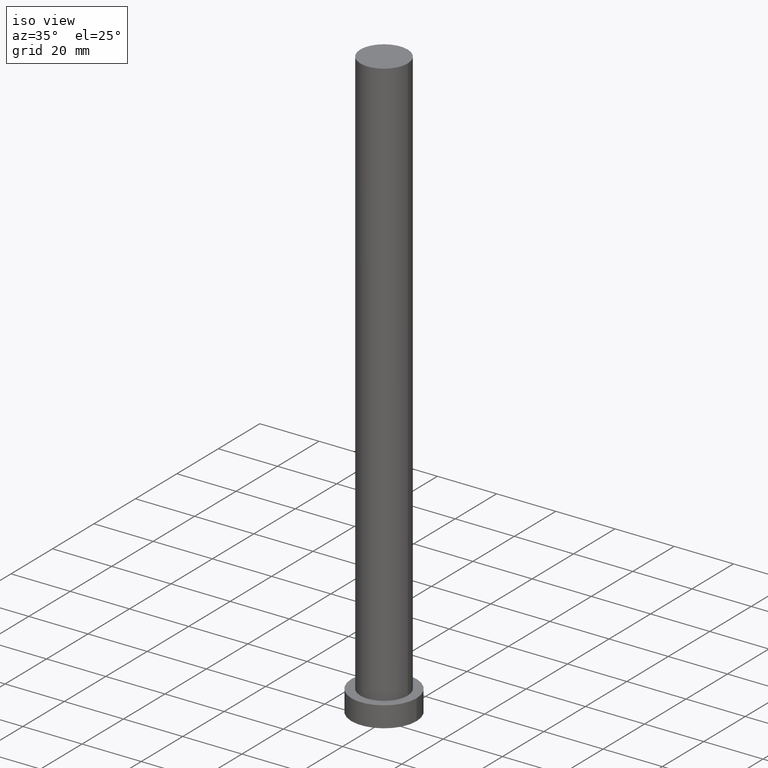
[diagram: clean part render]
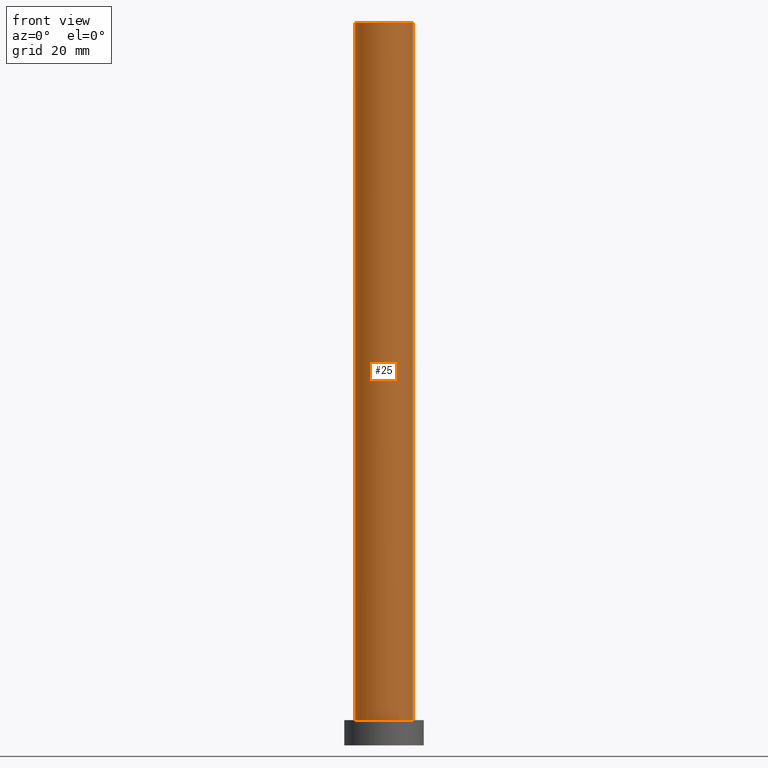
[diagram: tour spotlight — one face highlighted and labeled with its STEP entity id]
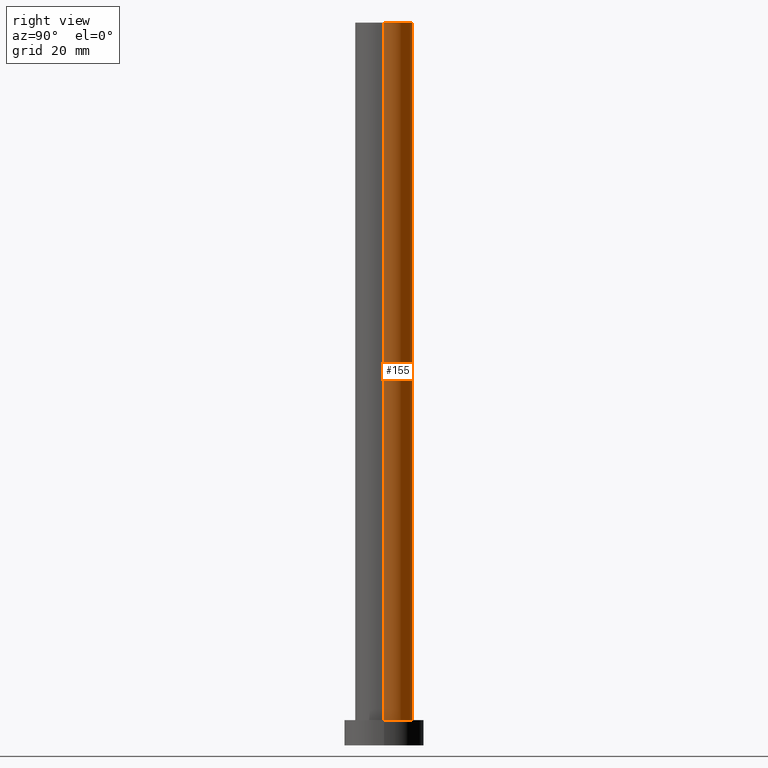
[diagram: tour spotlight — one face highlighted and labeled with its STEP entity id]
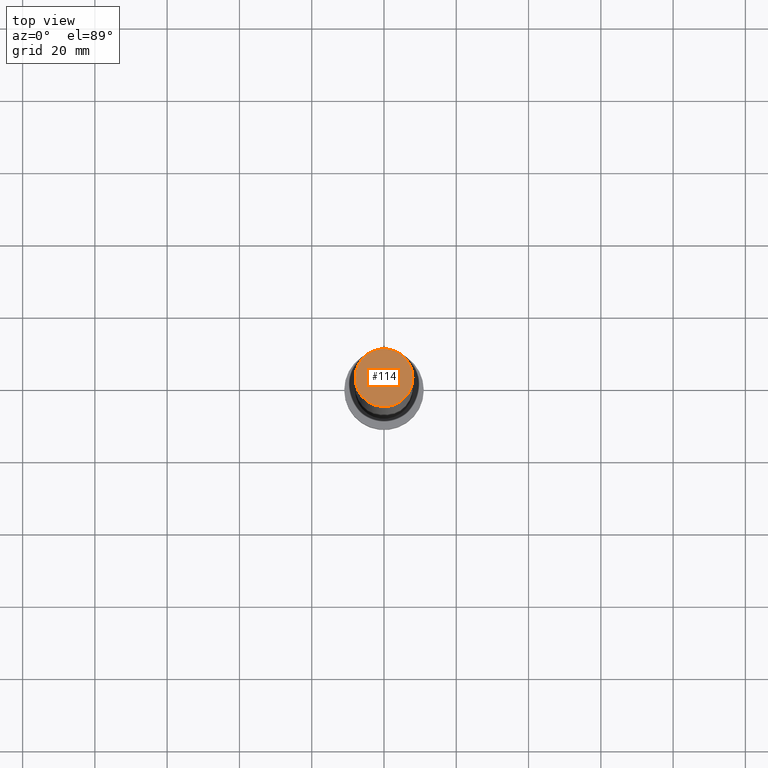
[diagram: tour spotlight — one face highlighted and labeled with its STEP entity id]
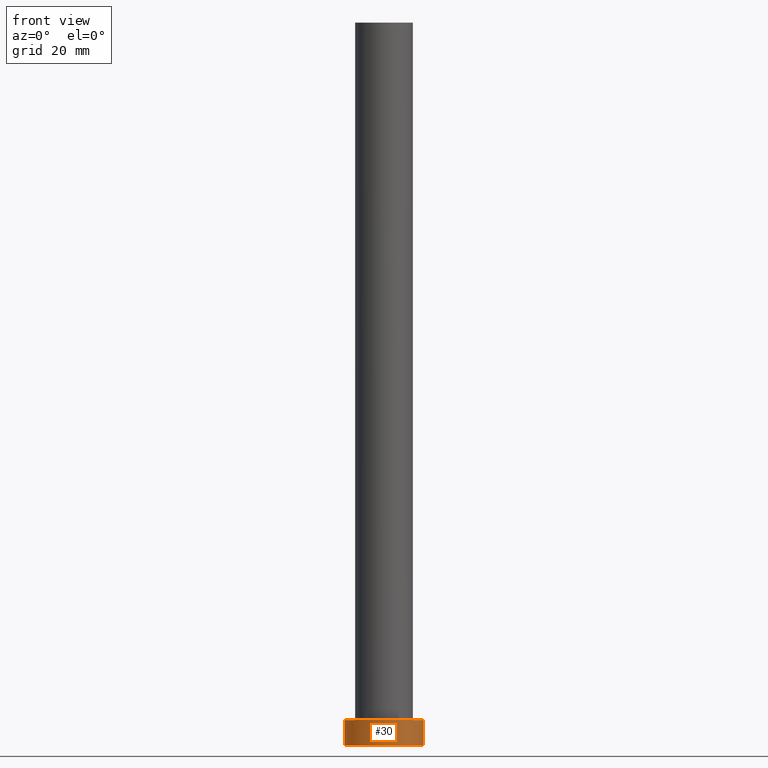
[diagram: tour spotlight — one face highlighted and labeled with its STEP entity id]
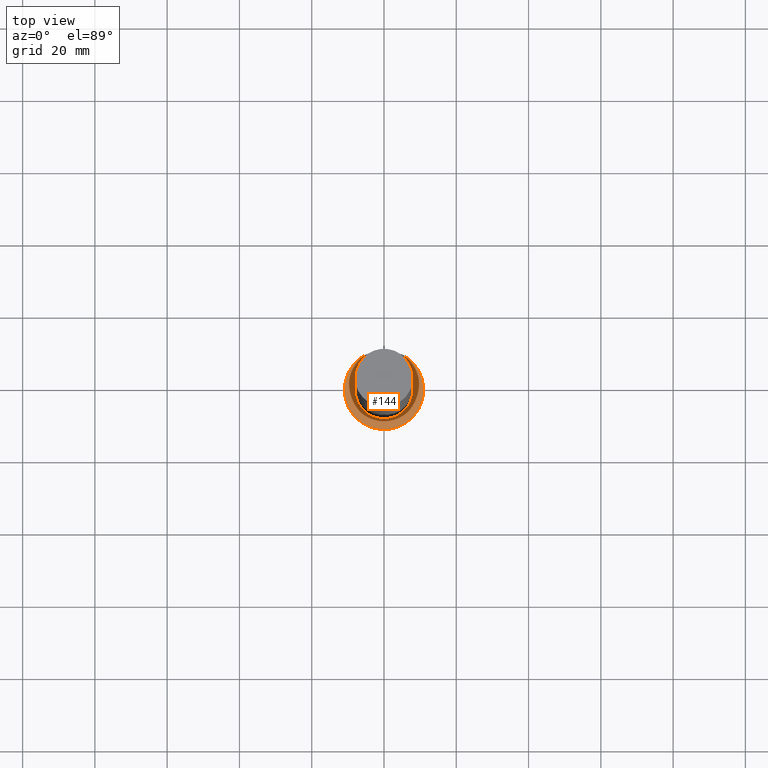
[diagram: tour spotlight — one face highlighted and labeled with its STEP entity id]
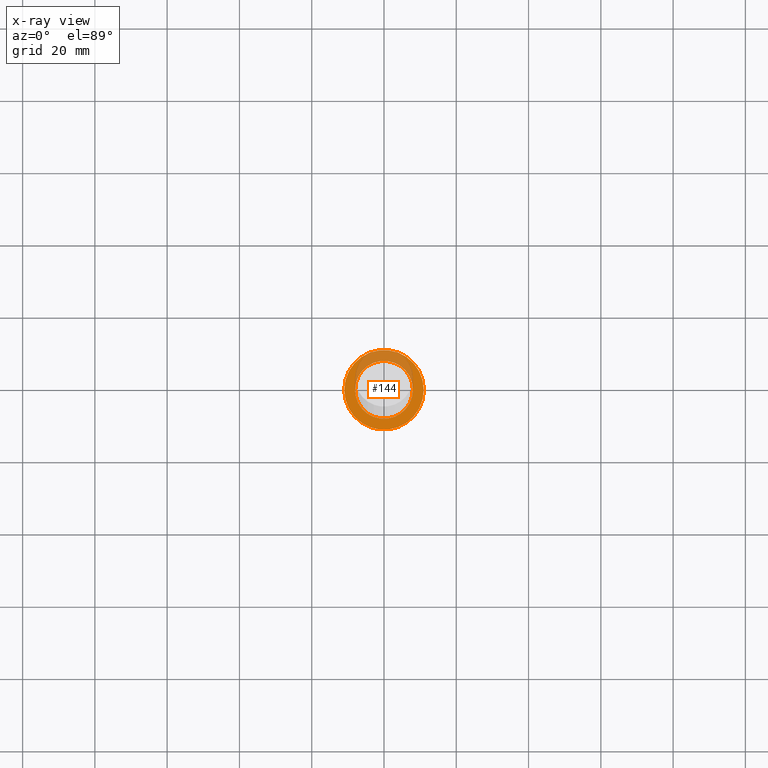
[diagram: x-ray of the same camera — body ghosted, this tour face saturated]
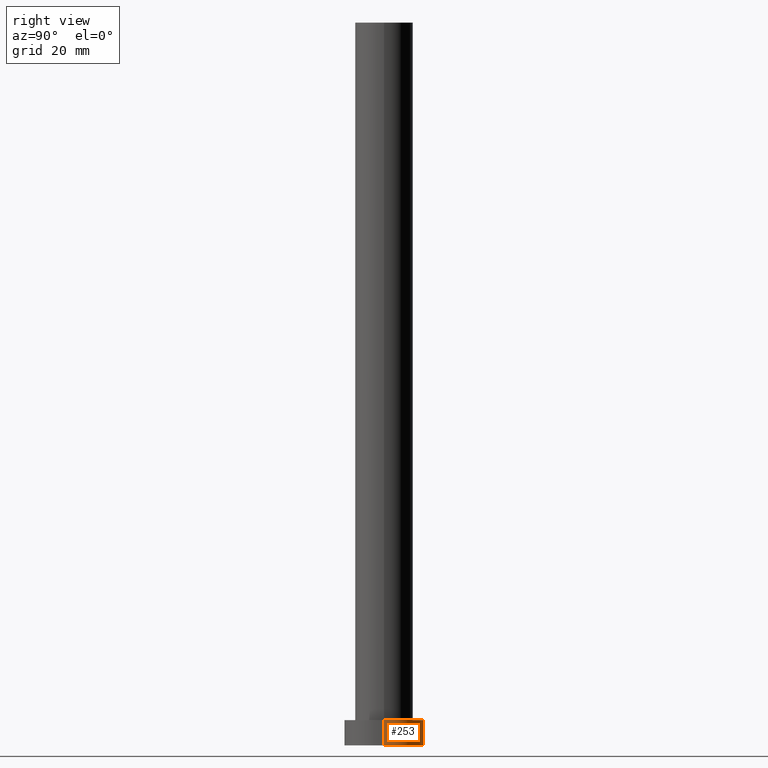
[diagram: tour spotlight — one face highlighted and labeled with its STEP entity id]
A machine part: a face-by-face anatomy tour. The part has 7 B-rep faces; the first image is the clean iso view, then the 6 largest visible faces are spotlighted one at a time (largest first), each with its STEP entity span.

Face 1 — front view, entity #25. In plain terms, the highlighted cylindrical surface (edge-blend (fillet) strip) has radius 8 mm, axis along (-0, -0, -1).
Definition (entity closure, byte-faithful):
#10 = CARTESIAN_POINT ( 'NONE',  ( 0.000000000000000000, 0.000000000000000000, 7.000000000000000000 ) ) ;
#13 = EDGE_LOOP ( 'NONE', ( #125, #53, #192, #211 ) ) ;
#18 = VERTEX_POINT ( 'NONE', #45 ) ;
#25 = ADVANCED_FACE ( 'NONE', ( #79 ), #238, .T. ) ;
#27 = AXIS2_PLACEMENT_3D ( 'NONE', #198, #67, #244 ) ;
#31 = LINE ( 'NONE', #102, #231 ) ;
#32 = DIRECTION ( 'NONE',  ( -0.000000000000000000, -0.000000000000000000, -1.000000000000000000 ) ) ;
#45 = CARTESIAN_POINT ( 'NONE',  ( 8.000000000000000000, 9.797174393178825657E-16, 200.0000000000000000 ) ) ;
#50 = DIRECTION ( 'NONE',  ( 0.000000000000000000, 0.000000000000000000, 1.000000000000000000 ) ) ;
#53 = ORIENTED_EDGE ( 'NONE', *, *, #98, .F. ) ;
#62 = CARTESIAN_POINT ( 'NONE',  ( 0.000000000000000000, 0.000000000000000000, 200.0000000000000000 ) ) ;
#67 = DIRECTION ( 'NONE',  ( -0.000000000000000000, -0.000000000000000000, -1.000000000000000000 ) ) ;
#78 = EDGE_CURVE ( 'NONE', #18, #96, #31, .T. ) ;
#79 = FACE_OUTER_BOUND ( 'NONE', #13, .T. ) ;
#85 = DIRECTION ( 'NONE',  ( -0.000000000000000000, -0.000000000000000000, -1.000000000000000000 ) ) ;
#92 = AXIS2_PLACEMENT_3D ( 'NONE', #10, #182, #245 ) ;
#96 = VERTEX_POINT ( 'NONE', #186 ) ;
#98 = EDGE_CURVE ( 'NONE', #112, #18, #201, .T. ) ;
#99 = LINE ( 'NONE', #223, #179 ) ;
#102 = CARTESIAN_POINT ( 'NONE',  ( 8.000000000000000000, 9.797174393178825657E-16, 200.0000000000000000 ) ) ;
#112 = VERTEX_POINT ( 'NONE', #248 ) ;
#125 = ORIENTED_EDGE ( 'NONE', *, *, #78, .F. ) ;
#148 = EDGE_CURVE ( 'NONE', #112, #234, #99, .T. ) ;
#156 = EDGE_CURVE ( 'NONE', #234, #96, #199, .T. ) ;
#167 = AXIS2_PLACEMENT_3D ( 'NONE', #62, #50, #185 ) ;
#179 = VECTOR ( 'NONE', #85, 1000.000000000000000 ) ;
#182 = DIRECTION ( 'NONE',  ( 0.000000000000000000, 0.000000000000000000, 1.000000000000000000 ) ) ;
#185 = DIRECTION ( 'NONE',  ( 1.000000000000000000, 0.000000000000000000, 0.000000000000000000 ) ) ;
#186 = CARTESIAN_POINT ( 'NONE',  ( 8.000000000000000000, 9.797174393178825657E-16, 7.000000000000000000 ) ) ;
#192 = ORIENTED_EDGE ( 'NONE', *, *, #148, .T. ) ;
#198 = CARTESIAN_POINT ( 'NONE',  ( 0.000000000000000000, 0.000000000000000000, 200.0000000000000000 ) ) ;
#199 = CIRCLE ( 'NONE', #92, 8.000000000000000000 ) ;
#201 = CIRCLE ( 'NONE', #167, 8.000000000000000000 ) ;
#211 = ORIENTED_EDGE ( 'NONE', *, *, #156, .T. ) ;
#223 = CARTESIAN_POINT ( 'NONE',  ( -8.000000000000000000, 0.000000000000000000, 200.0000000000000000 ) ) ;
#229 = CARTESIAN_POINT ( 'NONE',  ( -8.000000000000000000, 0.000000000000000000, 7.000000000000000000 ) ) ;
#231 = VECTOR ( 'NONE', #32, 1000.000000000000000 ) ;
#234 = VERTEX_POINT ( 'NONE', #229 ) ;
#238 = CYLINDRICAL_SURFACE ( 'NONE', #27, 8.000000000000000000 ) ;
#244 = DIRECTION ( 'NONE',  ( -1.000000000000000000, 0.000000000000000000, 0.000000000000000000 ) ) ;
#245 = DIRECTION ( 'NONE',  ( 1.000000000000000000, 0.000000000000000000, 0.000000000000000000 ) ) ;
#248 = CARTESIAN_POINT ( 'NONE',  ( -8.000000000000000000, 0.000000000000000000, 200.0000000000000000 ) ) ;

Face 2 — right view, entity #155. In plain terms, the highlighted cylindrical surface (edge-blend (fillet) strip) has radius 8 mm, axis along (-0, -0, -1).
Definition (entity closure, byte-faithful):
#7 = CARTESIAN_POINT ( 'NONE',  ( 0.000000000000000000, 0.000000000000000000, 200.0000000000000000 ) ) ;
#18 = VERTEX_POINT ( 'NONE', #45 ) ;
#31 = LINE ( 'NONE', #102, #231 ) ;
#32 = DIRECTION ( 'NONE',  ( -0.000000000000000000, -0.000000000000000000, -1.000000000000000000 ) ) ;
#45 = CARTESIAN_POINT ( 'NONE',  ( 8.000000000000000000, 9.797174393178825657E-16, 200.0000000000000000 ) ) ;
#55 = ORIENTED_EDGE ( 'NONE', *, *, #78, .T. ) ;
#61 = AXIS2_PLACEMENT_3D ( 'NONE', #7, #158, #66 ) ;
#63 = DIRECTION ( 'NONE',  ( -0.000000000000000000, -0.000000000000000000, -1.000000000000000000 ) ) ;
#64 = CIRCLE ( 'NONE', #61, 8.000000000000000000 ) ;
#66 = DIRECTION ( 'NONE',  ( 1.000000000000000000, 0.000000000000000000, 0.000000000000000000 ) ) ;
#78 = EDGE_CURVE ( 'NONE', #18, #96, #31, .T. ) ;
#84 = CYLINDRICAL_SURFACE ( 'NONE', #194, 8.000000000000000000 ) ;
#85 = DIRECTION ( 'NONE',  ( -0.000000000000000000, -0.000000000000000000, -1.000000000000000000 ) ) ;
#89 = ORIENTED_EDGE ( 'NONE', *, *, #148, .F. ) ;
#96 = VERTEX_POINT ( 'NONE', #186 ) ;
#99 = LINE ( 'NONE', #223, #179 ) ;
#102 = CARTESIAN_POINT ( 'NONE',  ( 8.000000000000000000, 9.797174393178825657E-16, 200.0000000000000000 ) ) ;
#104 = CIRCLE ( 'NONE', #241, 8.000000000000000000 ) ;
#112 = VERTEX_POINT ( 'NONE', #248 ) ;
#119 = DIRECTION ( 'NONE',  ( 0.000000000000000000, 0.000000000000000000, 1.000000000000000000 ) ) ;
#127 = EDGE_LOOP ( 'NONE', ( #170, #55, #228, #89 ) ) ;
#139 = CARTESIAN_POINT ( 'NONE',  ( 0.000000000000000000, 0.000000000000000000, 200.0000000000000000 ) ) ;
#148 = EDGE_CURVE ( 'NONE', #112, #234, #99, .T. ) ;
#155 = ADVANCED_FACE ( 'NONE', ( #187 ), #84, .T. ) ;
#158 = DIRECTION ( 'NONE',  ( 0.000000000000000000, 0.000000000000000000, 1.000000000000000000 ) ) ;
#159 = EDGE_CURVE ( 'NONE', #18, #112, #64, .T. ) ;
#165 = EDGE_CURVE ( 'NONE', #96, #234, #104, .T. ) ;
#170 = ORIENTED_EDGE ( 'NONE', *, *, #159, .F. ) ;
#179 = VECTOR ( 'NONE', #85, 1000.000000000000000 ) ;
#186 = CARTESIAN_POINT ( 'NONE',  ( 8.000000000000000000, 9.797174393178825657E-16, 7.000000000000000000 ) ) ;
#187 = FACE_OUTER_BOUND ( 'NONE', #127, .T. ) ;
#194 = AXIS2_PLACEMENT_3D ( 'NONE', #139, #63, #204 ) ;
#200 = DIRECTION ( 'NONE',  ( 1.000000000000000000, 0.000000000000000000, 0.000000000000000000 ) ) ;
#204 = DIRECTION ( 'NONE',  ( -1.000000000000000000, 0.000000000000000000, 0.000000000000000000 ) ) ;
#221 = CARTESIAN_POINT ( 'NONE',  ( 0.000000000000000000, 0.000000000000000000, 7.000000000000000000 ) ) ;
#223 = CARTESIAN_POINT ( 'NONE',  ( -8.000000000000000000, 0.000000000000000000, 200.0000000000000000 ) ) ;
#228 = ORIENTED_EDGE ( 'NONE', *, *, #165, .T. ) ;
#229 = CARTESIAN_POINT ( 'NONE',  ( -8.000000000000000000, 0.000000000000000000, 7.000000000000000000 ) ) ;
#231 = VECTOR ( 'NONE', #32, 1000.000000000000000 ) ;
#234 = VERTEX_POINT ( 'NONE', #229 ) ;
#241 = AXIS2_PLACEMENT_3D ( 'NONE', #221, #119, #200 ) ;
#248 = CARTESIAN_POINT ( 'NONE',  ( -8.000000000000000000, 0.000000000000000000, 200.0000000000000000 ) ) ;

Face 3 — top view, entity #114. In plain terms, the highlighted planar face has unit normal (0, 0, 1).
Definition (entity closure, byte-faithful):
#7 = CARTESIAN_POINT ( 'NONE',  ( 0.000000000000000000, 0.000000000000000000, 200.0000000000000000 ) ) ;
#18 = VERTEX_POINT ( 'NONE', #45 ) ;
#28 = FACE_OUTER_BOUND ( 'NONE', #250, .T. ) ;
#45 = CARTESIAN_POINT ( 'NONE',  ( 8.000000000000000000, 9.797174393178825657E-16, 200.0000000000000000 ) ) ;
#50 = DIRECTION ( 'NONE',  ( 0.000000000000000000, 0.000000000000000000, 1.000000000000000000 ) ) ;
#61 = AXIS2_PLACEMENT_3D ( 'NONE', #7, #158, #66 ) ;
#62 = CARTESIAN_POINT ( 'NONE',  ( 0.000000000000000000, 0.000000000000000000, 200.0000000000000000 ) ) ;
#64 = CIRCLE ( 'NONE', #61, 8.000000000000000000 ) ;
#66 = DIRECTION ( 'NONE',  ( 1.000000000000000000, 0.000000000000000000, 0.000000000000000000 ) ) ;
#68 = DIRECTION ( 'NONE',  ( 1.000000000000000000, 0.000000000000000000, -0.000000000000000000 ) ) ;
#98 = EDGE_CURVE ( 'NONE', #112, #18, #201, .T. ) ;
#112 = VERTEX_POINT ( 'NONE', #248 ) ;
#114 = ADVANCED_FACE ( 'NONE', ( #28 ), #161, .T. ) ;
#135 = ORIENTED_EDGE ( 'NONE', *, *, #159, .T. ) ;
#151 = ORIENTED_EDGE ( 'NONE', *, *, #98, .T. ) ;
#158 = DIRECTION ( 'NONE',  ( 0.000000000000000000, 0.000000000000000000, 1.000000000000000000 ) ) ;
#159 = EDGE_CURVE ( 'NONE', #18, #112, #64, .T. ) ;
#161 = PLANE ( 'NONE',  #212 ) ;
#167 = AXIS2_PLACEMENT_3D ( 'NONE', #62, #50, #185 ) ;
#185 = DIRECTION ( 'NONE',  ( 1.000000000000000000, 0.000000000000000000, 0.000000000000000000 ) ) ;
#189 = CARTESIAN_POINT ( 'NONE',  ( 0.000000000000000000, 0.000000000000000000, 200.0000000000000000 ) ) ;
#201 = CIRCLE ( 'NONE', #167, 8.000000000000000000 ) ;
#202 = DIRECTION ( 'NONE',  ( 0.000000000000000000, 0.000000000000000000, 1.000000000000000000 ) ) ;
#212 = AXIS2_PLACEMENT_3D ( 'NONE', #189, #202, #68 ) ;
#248 = CARTESIAN_POINT ( 'NONE',  ( -8.000000000000000000, 0.000000000000000000, 200.0000000000000000 ) ) ;
#250 = EDGE_LOOP ( 'NONE', ( #151, #135 ) ) ;

Face 4 — front view, entity #30. In plain terms, the highlighted cylindrical surface (partial cylindrical patch) has radius 11 mm, axis along (-0, -0, -1).
Definition (entity closure, byte-faithful):
#3 = DIRECTION ( 'NONE',  ( 1.000000000000000000, 0.000000000000000000, 0.000000000000000000 ) ) ;
#4 = AXIS2_PLACEMENT_3D ( 'NONE', #236, #178, #3 ) ;
#11 = CIRCLE ( 'NONE', #73, 11.00000000000000000 ) ;
#12 = CARTESIAN_POINT ( 'NONE',  ( -11.00000000000000000, 0.000000000000000000, 7.000000000000000000 ) ) ;
#16 = VERTEX_POINT ( 'NONE', #21 ) ;
#17 = EDGE_CURVE ( 'NONE', #16, #52, #51, .T. ) ;
#21 = CARTESIAN_POINT ( 'NONE',  ( -11.00000000000000000, 0.000000000000000000, 7.000000000000000000 ) ) ;
#30 = ADVANCED_FACE ( 'NONE', ( #220 ), #103, .T. ) ;
#34 = CARTESIAN_POINT ( 'NONE',  ( 0.000000000000000000, 0.000000000000000000, 0.000000000000000000 ) ) ;
#47 = DIRECTION ( 'NONE',  ( -0.000000000000000000, -0.000000000000000000, -1.000000000000000000 ) ) ;
#48 = CARTESIAN_POINT ( 'NONE',  ( -11.00000000000000000, 0.000000000000000000, 0.000000000000000000 ) ) ;
#49 = CARTESIAN_POINT ( 'NONE',  ( 11.00000000000000000, 1.347111479062088405E-15, 7.000000000000000000 ) ) ;
#51 = CIRCLE ( 'NONE', #4, 11.00000000000000000 ) ;
#52 = VERTEX_POINT ( 'NONE', #49 ) ;
#56 = DIRECTION ( 'NONE',  ( -0.000000000000000000, -0.000000000000000000, -1.000000000000000000 ) ) ;
#69 = VECTOR ( 'NONE', #56, 1000.000000000000000 ) ;
#71 = ORIENTED_EDGE ( 'NONE', *, *, #226, .T. ) ;
#73 = AXIS2_PLACEMENT_3D ( 'NONE', #34, #87, #101 ) ;
#87 = DIRECTION ( 'NONE',  ( 0.000000000000000000, 0.000000000000000000, 1.000000000000000000 ) ) ;
#91 = EDGE_LOOP ( 'NONE', ( #108, #206, #71, #169 ) ) ;
#101 = DIRECTION ( 'NONE',  ( 1.000000000000000000, 0.000000000000000000, 0.000000000000000000 ) ) ;
#103 = CYLINDRICAL_SURFACE ( 'NONE', #188, 11.00000000000000000 ) ;
#105 = DIRECTION ( 'NONE',  ( -0.000000000000000000, -0.000000000000000000, -1.000000000000000000 ) ) ;
#108 = ORIENTED_EDGE ( 'NONE', *, *, #110, .F. ) ;
#110 = EDGE_CURVE ( 'NONE', #52, #209, #121, .T. ) ;
#121 = LINE ( 'NONE', #141, #162 ) ;
#122 = CARTESIAN_POINT ( 'NONE',  ( 11.00000000000000000, 1.347111479062088405E-15, 0.000000000000000000 ) ) ;
#141 = CARTESIAN_POINT ( 'NONE',  ( 11.00000000000000000, 1.347111479062088405E-15, 7.000000000000000000 ) ) ;
#147 = LINE ( 'NONE', #12, #69 ) ;
#162 = VECTOR ( 'NONE', #105, 1000.000000000000000 ) ;
#169 = ORIENTED_EDGE ( 'NONE', *, *, #215, .T. ) ;
#178 = DIRECTION ( 'NONE',  ( 0.000000000000000000, 0.000000000000000000, 1.000000000000000000 ) ) ;
#188 = AXIS2_PLACEMENT_3D ( 'NONE', #222, #47, #242 ) ;
#195 = VERTEX_POINT ( 'NONE', #48 ) ;
#206 = ORIENTED_EDGE ( 'NONE', *, *, #17, .F. ) ;
#209 = VERTEX_POINT ( 'NONE', #122 ) ;
#215 = EDGE_CURVE ( 'NONE', #195, #209, #11, .T. ) ;
#220 = FACE_OUTER_BOUND ( 'NONE', #91, .T. ) ;
#222 = CARTESIAN_POINT ( 'NONE',  ( 0.000000000000000000, 0.000000000000000000, 7.000000000000000000 ) ) ;
#226 = EDGE_CURVE ( 'NONE', #16, #195, #147, .T. ) ;
#236 = CARTESIAN_POINT ( 'NONE',  ( 0.000000000000000000, 0.000000000000000000, 7.000000000000000000 ) ) ;
#242 = DIRECTION ( 'NONE',  ( -1.000000000000000000, 0.000000000000000000, 0.000000000000000000 ) ) ;

Face 5 — top view, entity #144. An x-ray twin of the same camera follows (body ghosted, this face saturated) — the face is partly hidden behind the body. In plain terms, the highlighted planar face has unit normal (0, 0, 1).
Definition (entity closure, byte-faithful):
#3 = DIRECTION ( 'NONE',  ( 1.000000000000000000, 0.000000000000000000, 0.000000000000000000 ) ) ;
#4 = AXIS2_PLACEMENT_3D ( 'NONE', #236, #178, #3 ) ;
#8 = CARTESIAN_POINT ( 'NONE',  ( 0.000000000000000000, 0.000000000000000000, 7.000000000000000000 ) ) ;
#9 = CARTESIAN_POINT ( 'NONE',  ( 0.000000000000000000, 0.000000000000000000, 7.000000000000000000 ) ) ;
#10 = CARTESIAN_POINT ( 'NONE',  ( 0.000000000000000000, 0.000000000000000000, 7.000000000000000000 ) ) ;
#16 = VERTEX_POINT ( 'NONE', #21 ) ;
#17 = EDGE_CURVE ( 'NONE', #16, #52, #51, .T. ) ;
#21 = CARTESIAN_POINT ( 'NONE',  ( -11.00000000000000000, 0.000000000000000000, 7.000000000000000000 ) ) ;
#26 = DIRECTION ( 'NONE',  ( 0.000000000000000000, 0.000000000000000000, 1.000000000000000000 ) ) ;
#46 = PLANE ( 'NONE',  #142 ) ;
#49 = CARTESIAN_POINT ( 'NONE',  ( 11.00000000000000000, 1.347111479062088405E-15, 7.000000000000000000 ) ) ;
#51 = CIRCLE ( 'NONE', #4, 11.00000000000000000 ) ;
#52 = VERTEX_POINT ( 'NONE', #49 ) ;
#57 = EDGE_LOOP ( 'NONE', ( #70, #146 ) ) ;
#70 = ORIENTED_EDGE ( 'NONE', *, *, #156, .F. ) ;
#83 = AXIS2_PLACEMENT_3D ( 'NONE', #9, #26, #218 ) ;
#86 = DIRECTION ( 'NONE',  ( 0.000000000000000000, 0.000000000000000000, 1.000000000000000000 ) ) ;
#88 = CIRCLE ( 'NONE', #83, 11.00000000000000000 ) ;
#92 = AXIS2_PLACEMENT_3D ( 'NONE', #10, #182, #245 ) ;
#96 = VERTEX_POINT ( 'NONE', #186 ) ;
#100 = EDGE_CURVE ( 'NONE', #52, #16, #88, .T. ) ;
#104 = CIRCLE ( 'NONE', #241, 8.000000000000000000 ) ;
#109 = ORIENTED_EDGE ( 'NONE', *, *, #100, .T. ) ;
#119 = DIRECTION ( 'NONE',  ( 0.000000000000000000, 0.000000000000000000, 1.000000000000000000 ) ) ;
#123 = FACE_OUTER_BOUND ( 'NONE', #207, .T. ) ;
#142 = AXIS2_PLACEMENT_3D ( 'NONE', #8, #86, #203 ) ;
#143 = FACE_BOUND ( 'NONE', #57, .T. ) ;
#144 = ADVANCED_FACE ( 'NONE', ( #143, #123 ), #46, .T. ) ;
#146 = ORIENTED_EDGE ( 'NONE', *, *, #165, .F. ) ;
#156 = EDGE_CURVE ( 'NONE', #234, #96, #199, .T. ) ;
#165 = EDGE_CURVE ( 'NONE', #96, #234, #104, .T. ) ;
#178 = DIRECTION ( 'NONE',  ( 0.000000000000000000, 0.000000000000000000, 1.000000000000000000 ) ) ;
#182 = DIRECTION ( 'NONE',  ( 0.000000000000000000, 0.000000000000000000, 1.000000000000000000 ) ) ;
#186 = CARTESIAN_POINT ( 'NONE',  ( 8.000000000000000000, 9.797174393178825657E-16, 7.000000000000000000 ) ) ;
#199 = CIRCLE ( 'NONE', #92, 8.000000000000000000 ) ;
#200 = DIRECTION ( 'NONE',  ( 1.000000000000000000, 0.000000000000000000, 0.000000000000000000 ) ) ;
#203 = DIRECTION ( 'NONE',  ( 1.000000000000000000, 0.000000000000000000, -0.000000000000000000 ) ) ;
#207 = EDGE_LOOP ( 'NONE', ( #252, #109 ) ) ;
#218 = DIRECTION ( 'NONE',  ( 1.000000000000000000, 0.000000000000000000, 0.000000000000000000 ) ) ;
#221 = CARTESIAN_POINT ( 'NONE',  ( 0.000000000000000000, 0.000000000000000000, 7.000000000000000000 ) ) ;
#229 = CARTESIAN_POINT ( 'NONE',  ( -8.000000000000000000, 0.000000000000000000, 7.000000000000000000 ) ) ;
#234 = VERTEX_POINT ( 'NONE', #229 ) ;
#236 = CARTESIAN_POINT ( 'NONE',  ( 0.000000000000000000, 0.000000000000000000, 7.000000000000000000 ) ) ;
#241 = AXIS2_PLACEMENT_3D ( 'NONE', #221, #119, #200 ) ;
#245 = DIRECTION ( 'NONE',  ( 1.000000000000000000, 0.000000000000000000, 0.000000000000000000 ) ) ;
#252 = ORIENTED_EDGE ( 'NONE', *, *, #17, .T. ) ;

Face 6 — right view, entity #253. In plain terms, the highlighted cylindrical surface (partial cylindrical patch) has radius 11 mm, axis along (-0, -0, -1).
Definition (entity closure, byte-faithful):
#9 = CARTESIAN_POINT ( 'NONE',  ( 0.000000000000000000, 0.000000000000000000, 7.000000000000000000 ) ) ;
#12 = CARTESIAN_POINT ( 'NONE',  ( -11.00000000000000000, 0.000000000000000000, 7.000000000000000000 ) ) ;
#16 = VERTEX_POINT ( 'NONE', #21 ) ;
#21 = CARTESIAN_POINT ( 'NONE',  ( -11.00000000000000000, 0.000000000000000000, 7.000000000000000000 ) ) ;
#26 = DIRECTION ( 'NONE',  ( 0.000000000000000000, 0.000000000000000000, 1.000000000000000000 ) ) ;
#36 = DIRECTION ( 'NONE',  ( 1.000000000000000000, 0.000000000000000000, 0.000000000000000000 ) ) ;
#37 = ORIENTED_EDGE ( 'NONE', *, *, #246, .T. ) ;
#48 = CARTESIAN_POINT ( 'NONE',  ( -11.00000000000000000, 0.000000000000000000, 0.000000000000000000 ) ) ;
#49 = CARTESIAN_POINT ( 'NONE',  ( 11.00000000000000000, 1.347111479062088405E-15, 7.000000000000000000 ) ) ;
#52 = VERTEX_POINT ( 'NONE', #49 ) ;
#54 = DIRECTION ( 'NONE',  ( 0.000000000000000000, 0.000000000000000000, 1.000000000000000000 ) ) ;
#56 = DIRECTION ( 'NONE',  ( -0.000000000000000000, -0.000000000000000000, -1.000000000000000000 ) ) ;
#59 = AXIS2_PLACEMENT_3D ( 'NONE', #208, #54, #36 ) ;
#69 = VECTOR ( 'NONE', #56, 1000.000000000000000 ) ;
#83 = AXIS2_PLACEMENT_3D ( 'NONE', #9, #26, #218 ) ;
#88 = CIRCLE ( 'NONE', #83, 11.00000000000000000 ) ;
#90 = DIRECTION ( 'NONE',  ( -0.000000000000000000, -0.000000000000000000, -1.000000000000000000 ) ) ;
#100 = EDGE_CURVE ( 'NONE', #52, #16, #88, .T. ) ;
#105 = DIRECTION ( 'NONE',  ( -0.000000000000000000, -0.000000000000000000, -1.000000000000000000 ) ) ;
#106 = FACE_OUTER_BOUND ( 'NONE', #174, .T. ) ;
#107 = CARTESIAN_POINT ( 'NONE',  ( 0.000000000000000000, 0.000000000000000000, 7.000000000000000000 ) ) ;
#110 = EDGE_CURVE ( 'NONE', #52, #209, #121, .T. ) ;
#121 = LINE ( 'NONE', #141, #162 ) ;
#122 = CARTESIAN_POINT ( 'NONE',  ( 11.00000000000000000, 1.347111479062088405E-15, 0.000000000000000000 ) ) ;
#128 = CYLINDRICAL_SURFACE ( 'NONE', #224, 11.00000000000000000 ) ;
#129 = CIRCLE ( 'NONE', #59, 11.00000000000000000 ) ;
#141 = CARTESIAN_POINT ( 'NONE',  ( 11.00000000000000000, 1.347111479062088405E-15, 7.000000000000000000 ) ) ;
#145 = ORIENTED_EDGE ( 'NONE', *, *, #110, .T. ) ;
#147 = LINE ( 'NONE', #12, #69 ) ;
#162 = VECTOR ( 'NONE', #105, 1000.000000000000000 ) ;
#174 = EDGE_LOOP ( 'NONE', ( #191, #145, #37, #227 ) ) ;
#191 = ORIENTED_EDGE ( 'NONE', *, *, #100, .F. ) ;
#195 = VERTEX_POINT ( 'NONE', #48 ) ;
#208 = CARTESIAN_POINT ( 'NONE',  ( 0.000000000000000000, 0.000000000000000000, 0.000000000000000000 ) ) ;
#209 = VERTEX_POINT ( 'NONE', #122 ) ;
#218 = DIRECTION ( 'NONE',  ( 1.000000000000000000, 0.000000000000000000, 0.000000000000000000 ) ) ;
#224 = AXIS2_PLACEMENT_3D ( 'NONE', #107, #90, #255 ) ;
#226 = EDGE_CURVE ( 'NONE', #16, #195, #147, .T. ) ;
#227 = ORIENTED_EDGE ( 'NONE', *, *, #226, .F. ) ;
#246 = EDGE_CURVE ( 'NONE', #209, #195, #129, .T. ) ;
#253 = ADVANCED_FACE ( 'NONE', ( #106 ), #128, .T. ) ;
#255 = DIRECTION ( 'NONE',  ( -1.000000000000000000, 0.000000000000000000, 0.000000000000000000 ) ) ;